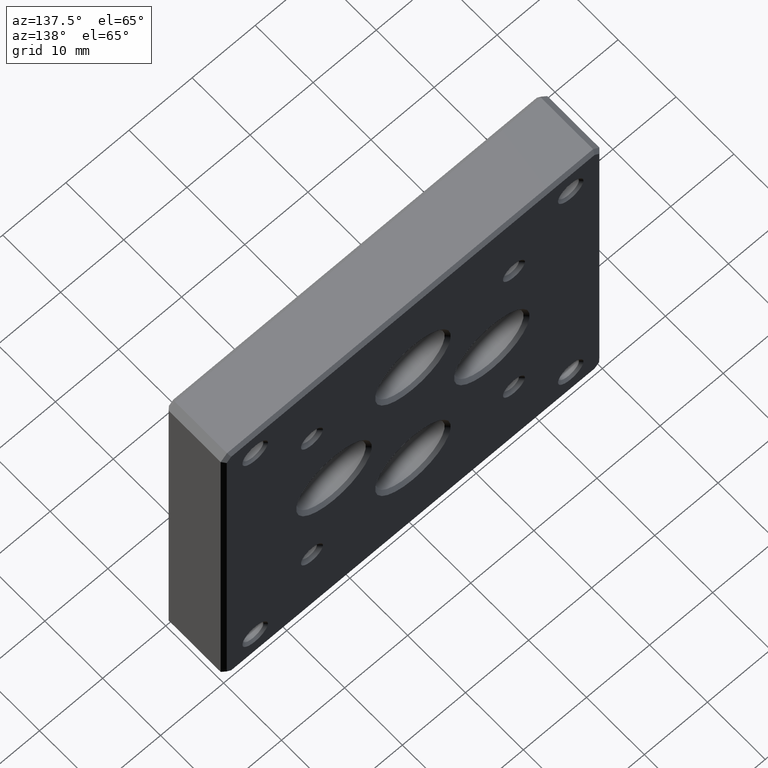
[diagram: clean part render]
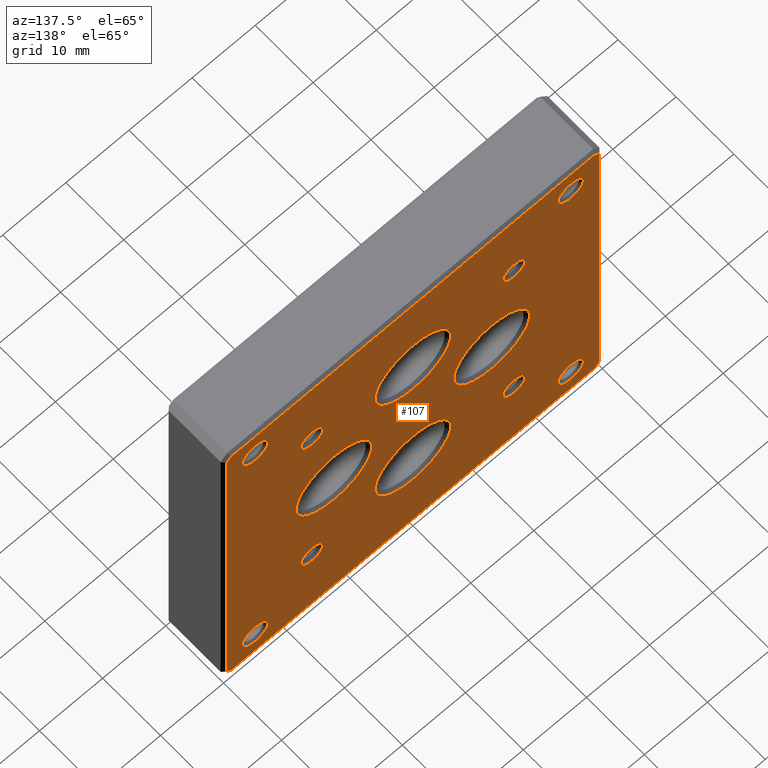
[diagram: same view with one face highlighted and labeled with its STEP entity id]
A machine part, auxiliary view. The second image highlights one B-rep face of the part: STEP entity #107.
In plain terms, the highlighted planar face has unit normal (0, 1, 0).
Its self-contained STEP definition (entity closure, byte-faithful):
#13 = CARTESIAN_POINT ( 'NONE',  ( 12.50000000000000533, 10.00000000000000000, 6.000000000000001776 ) ) ;
#15 = ORIENTED_EDGE ( 'NONE', *, *, #1526, .F. ) ;
#17 = ORIENTED_EDGE ( 'NONE', *, *, #604, .F. ) ;
#50 = FACE_BOUND ( 'NONE', #1059, .T. ) ;
#52 = DIRECTION ( 'NONE',  ( 0.000000000000000000, 0.000000000000000000, 1.000000000000000000 ) ) ;
#69 = FACE_BOUND ( 'NONE', #256, .T. ) ;
#107 = ADVANCED_FACE ( 'NONE', ( #172, #555, #656, #1136, #1269, #50, #1496, #1155, #896, #1382, #69, #1026, #403 ), #293, .T. ) ;
#120 = DIRECTION ( 'NONE',  ( 0.000000000000000000, 0.000000000000000000, 1.000000000000000000 ) ) ;
#121 = EDGE_LOOP ( 'NONE', ( #620 ) ) ;
#122 = CARTESIAN_POINT ( 'NONE',  ( 29.50000000000000355, 10.00000000000000000, -28.79289321881342900 ) ) ;
#125 = EDGE_LOOP ( 'NONE', ( #490 ) ) ;
#126 = VERTEX_POINT ( 'NONE', #1143 ) ;
#130 = VERTEX_POINT ( 'NONE', #613 ) ;
#142 = DIRECTION ( 'NONE',  ( -1.000000000000000000, 0.000000000000000000, 0.000000000000000000 ) ) ;
#143 = AXIS2_PLACEMENT_3D ( 'NONE', #515, #657, #52 ) ;
#146 = DIRECTION ( 'NONE',  ( 0.000000000000000000, 0.000000000000000000, 1.000000000000000000 ) ) ;
#155 = CARTESIAN_POINT ( 'NONE',  ( 28.29289321881344321, 10.00000000000000000, 29.50000000000000711 ) ) ;
#161 = CARTESIAN_POINT ( 'NONE',  ( -28.79289321881344321, 10.00000000000000000, 29.50000000000000711 ) ) ;
#168 = CIRCLE ( 'NONE', #143, 2.024999999999999023 ) ;
#172 = FACE_BOUND ( 'NONE', #1391, .T. ) ;
#176 = AXIS2_PLACEMENT_3D ( 'NONE', #1435, #1169, #569 ) ;
#178 = DIRECTION ( 'NONE',  ( 0.000000000000000000, 1.000000000000000000, 0.000000000000000000 ) ) ;
#184 = AXIS2_PLACEMENT_3D ( 'NONE', #1025, #903, #547 ) ;
#201 = EDGE_CURVE ( 'NONE', #1055, #1055, #1091, .T. ) ;
#208 = CARTESIAN_POINT ( 'NONE',  ( 29.50000000000000355, 10.00000000000000000, -28.29289321881343611 ) ) ;
#209 = AXIS2_PLACEMENT_3D ( 'NONE', #299, #684, #324 ) ;
#216 = EDGE_CURVE ( 'NONE', #562, #562, #658, .T. ) ;
#227 = AXIS2_PLACEMENT_3D ( 'NONE', #882, #178, #663 ) ;
#242 = CIRCLE ( 'NONE', #448, 6.000000000000000000 ) ;
#256 = EDGE_LOOP ( 'NONE', ( #1106 ) ) ;
#259 = VECTOR ( 'NONE', #637, 1000.000000000000000 ) ;
#261 = DIRECTION ( 'NONE',  ( 0.000000000000000000, 0.000000000000000000, 1.000000000000000000 ) ) ;
#263 = DIRECTION ( 'NONE',  ( 0.000000000000000000, 0.000000000000000000, 1.000000000000000000 ) ) ;
#272 = ORIENTED_EDGE ( 'NONE', *, *, #653, .T. ) ;
#276 = DIRECTION ( 'NONE',  ( 1.156482317317871478E-16, 0.000000000000000000, 1.000000000000000000 ) ) ;
#283 = LINE ( 'NONE', #1256, #298 ) ;
#292 = CARTESIAN_POINT ( 'NONE',  ( 24.99999999999999645, 10.00000000000000000, -24.99999999999998934 ) ) ;
#293 = PLANE ( 'NONE',  #227 ) ;
#298 = VECTOR ( 'NONE', #276, 1000.000000000000000 ) ;
#299 = CARTESIAN_POINT ( 'NONE',  ( 12.50000000000000533, 10.00000000000000000, 1.734723475976807094E-15 ) ) ;
#303 = CIRCLE ( 'NONE', #864, 2.024999999999999023 ) ;
#324 = DIRECTION ( 'NONE',  ( 0.000000000000000000, 0.000000000000000000, 1.000000000000000000 ) ) ;
#338 = VERTEX_POINT ( 'NONE', #122 ) ;
#341 = EDGE_CURVE ( 'NONE', #1546, #474, #1356, .T. ) ;
#386 = CIRCLE ( 'NONE', #1265, 6.000000000000000000 ) ;
#391 = ORIENTED_EDGE ( 'NONE', *, *, #1387, .F. ) ;
#396 = VECTOR ( 'NONE', #142, 1000.000000000000000 ) ;
#403 = FACE_OUTER_BOUND ( 'NONE', #1348, .T. ) ;
#409 = DIRECTION ( 'NONE',  ( -0.000000000000000000, 1.000000000000000000, -0.000000000000000000 ) ) ;
#411 = DIRECTION ( 'NONE',  ( -0.000000000000000000, 1.000000000000000000, -0.000000000000000000 ) ) ;
#434 = CARTESIAN_POINT ( 'NONE',  ( 16.00000000000000355, 10.00000000000000000, 17.75000000000000000 ) ) ;
#441 = LINE ( 'NONE', #1537, #1558 ) ;
#442 = EDGE_CURVE ( 'NONE', #1530, #1530, #781, .T. ) ;
#443 = CARTESIAN_POINT ( 'NONE',  ( -29.50000000000000355, 10.00000000000000000, 28.79289321881345032 ) ) ;
#447 = CARTESIAN_POINT ( 'NONE',  ( -25.00000000000000355, 10.00000000000000000, -24.99999999999999289 ) ) ;
#448 = AXIS2_PLACEMENT_3D ( 'NONE', #1238, #411, #263 ) ;
#474 = VERTEX_POINT ( 'NONE', #161 ) ;
#488 = EDGE_CURVE ( 'NONE', #1510, #1510, #386, .T. ) ;
#490 = ORIENTED_EDGE ( 'NONE', *, *, #201, .F. ) ;
#494 = EDGE_CURVE ( 'NONE', #126, #1546, #283, .T. ) ;
#515 = CARTESIAN_POINT ( 'NONE',  ( 25.00000000000000355, 10.00000000000000000, 25.00000000000000711 ) ) ;
#531 = EDGE_LOOP ( 'NONE', ( #602 ) ) ;
#543 = LINE ( 'NONE', #1230, #595 ) ;
#547 = DIRECTION ( 'NONE',  ( 0.000000000000000000, 0.000000000000000000, 1.000000000000000000 ) ) ;
#555 = FACE_BOUND ( 'NONE', #531, .T. ) ;
#562 = VERTEX_POINT ( 'NONE', #915 ) ;
#569 = DIRECTION ( 'NONE',  ( 0.000000000000000000, 0.000000000000000000, 1.000000000000000000 ) ) ;
#571 = EDGE_LOOP ( 'NONE', ( #1132 ) ) ;
#575 = ORIENTED_EDGE ( 'NONE', *, *, #494, .T. ) ;
#583 = ORIENTED_EDGE ( 'NONE', *, *, #921, .T. ) ;
#595 = VECTOR ( 'NONE', #632, 1000.000000000000114 ) ;
#599 = EDGE_LOOP ( 'NONE', ( #1216 ) ) ;
#602 = ORIENTED_EDGE ( 'NONE', *, *, #1489, .F. ) ;
#604 = EDGE_CURVE ( 'NONE', #1148, #1148, #822, .T. ) ;
#609 = VECTOR ( 'NONE', #1092, 1000.000000000000114 ) ;
#613 = CARTESIAN_POINT ( 'NONE',  ( 24.99999999999999645, 10.00000000000000000, -22.97499999999999076 ) ) ;
#620 = ORIENTED_EDGE ( 'NONE', *, *, #942, .F. ) ;
#624 = ORIENTED_EDGE ( 'NONE', *, *, #1501, .T. ) ;
#626 = ORIENTED_EDGE ( 'NONE', *, *, #807, .T. ) ;
#632 = DIRECTION ( 'NONE',  ( -0.7071067811865474617, 0.000000000000000000, 0.7071067811865474617 ) ) ;
#637 = DIRECTION ( 'NONE',  ( 1.000000000000000000, 0.000000000000000000, 0.000000000000000000 ) ) ;
#647 = CARTESIAN_POINT ( 'NONE',  ( 29.14644660940662035, 10.00000000000000000, 29.14644660940682286 ) ) ;
#653 = EDGE_CURVE ( 'NONE', #338, #1342, #441, .T. ) ;
#655 = CARTESIAN_POINT ( 'NONE',  ( -16.00000000000000355, 10.00000000000000000, -16.00000000000000355 ) ) ;
#656 = FACE_BOUND ( 'NONE', #121, .T. ) ;
#657 = DIRECTION ( 'NONE',  ( -0.000000000000000000, 1.000000000000000000, -0.000000000000000000 ) ) ;
#658 = CIRCLE ( 'NONE', #176, 5.999999999999998224 ) ;
#660 = DIRECTION ( 'NONE',  ( -0.000000000000000000, 1.000000000000000000, -0.000000000000000000 ) ) ;
#663 = DIRECTION ( 'NONE',  ( 0.000000000000000000, -0.000000000000000000, 1.000000000000000000 ) ) ;
#668 = CIRCLE ( 'NONE', #209, 6.000000000000000000 ) ;
#673 = ORIENTED_EDGE ( 'NONE', *, *, #854, .F. ) ;
#684 = DIRECTION ( 'NONE',  ( -0.000000000000000000, 1.000000000000000000, -0.000000000000000000 ) ) ;
#700 = VERTEX_POINT ( 'NONE', #974 ) ;
#718 = VERTEX_POINT ( 'NONE', #1319 ) ;
#726 = VECTOR ( 'NONE', #1479, 1000.000000000000114 ) ;
#730 = LINE ( 'NONE', #1555, #396 ) ;
#772 = VERTEX_POINT ( 'NONE', #1452 ) ;
#775 = DIRECTION ( 'NONE',  ( -0.000000000000000000, 1.000000000000000000, -0.000000000000000000 ) ) ;
#781 = CIRCLE ( 'NONE', #990, 1.749999999999998002 ) ;
#792 = DIRECTION ( 'NONE',  ( -0.000000000000000000, 1.000000000000000000, -0.000000000000000000 ) ) ;
#796 = CARTESIAN_POINT ( 'NONE',  ( 16.00000000000000355, 10.00000000000000000, 15.99999999999999645 ) ) ;
#807 = EDGE_CURVE ( 'NONE', #1342, #1073, #730, .T. ) ;
#812 = CARTESIAN_POINT ( 'NONE',  ( -12.49999999999999467, 10.00000000000000000, 6.000000000000003553 ) ) ;
#818 = ORIENTED_EDGE ( 'NONE', *, *, #925, .T. ) ;
#821 = CARTESIAN_POINT ( 'NONE',  ( -24.99999999999999645, 10.00000000000000000, 27.02500000000000568 ) ) ;
#822 = CIRCLE ( 'NONE', #1031, 2.024999999999999023 ) ;
#834 = VERTEX_POINT ( 'NONE', #821 ) ;
#841 = CARTESIAN_POINT ( 'NONE',  ( -16.00000000000000355, 10.00000000000000000, -14.25000000000000355 ) ) ;
#849 = VERTEX_POINT ( 'NONE', #1186 ) ;
#853 = EDGE_LOOP ( 'NONE', ( #15 ) ) ;
#854 = EDGE_CURVE ( 'NONE', #849, #849, #1128, .T. ) ;
#855 = AXIS2_PLACEMENT_3D ( 'NONE', #796, #1312, #1532 ) ;
#864 = AXIS2_PLACEMENT_3D ( 'NONE', #292, #775, #146 ) ;
#867 = AXIS2_PLACEMENT_3D ( 'NONE', #1325, #977, #120 ) ;
#875 = CARTESIAN_POINT ( 'NONE',  ( -16.00000000000000355, 10.00000000000000000, 15.99999999999999645 ) ) ;
#882 = CARTESIAN_POINT ( 'NONE',  ( 0.000000000000000000, 10.00000000000000000, 0.000000000000000000 ) ) ;
#896 = FACE_BOUND ( 'NONE', #599, .T. ) ;
#900 = DIRECTION ( 'NONE',  ( 0.000000000000000000, 0.000000000000000000, 1.000000000000000000 ) ) ;
#903 = DIRECTION ( 'NONE',  ( -0.000000000000000000, 1.000000000000000000, -0.000000000000000000 ) ) ;
#915 = CARTESIAN_POINT ( 'NONE',  ( 6.938893903907228378E-15, 10.00000000000000000, 18.50000000000000355 ) ) ;
#921 = EDGE_CURVE ( 'NONE', #1073, #126, #543, .T. ) ;
#925 = EDGE_CURVE ( 'NONE', #772, #1151, #1144, .T. ) ;
#935 = CARTESIAN_POINT ( 'NONE',  ( -16.00000000000000355, 10.00000000000000000, 17.74999999999999645 ) ) ;
#942 = EDGE_CURVE ( 'NONE', #700, #700, #168, .T. ) ;
#954 = CARTESIAN_POINT ( 'NONE',  ( -29.14644660940672694, 10.00000000000000000, 29.14644660940672694 ) ) ;
#971 = CIRCLE ( 'NONE', #1188, 1.749999999999999778 ) ;
#974 = CARTESIAN_POINT ( 'NONE',  ( 25.00000000000000355, 10.00000000000000000, 27.02500000000000568 ) ) ;
#977 = DIRECTION ( 'NONE',  ( -0.000000000000000000, 1.000000000000000000, -0.000000000000000000 ) ) ;
#983 = EDGE_LOOP ( 'NONE', ( #1058 ) ) ;
#990 = AXIS2_PLACEMENT_3D ( 'NONE', #875, #660, #900 ) ;
#993 = EDGE_CURVE ( 'NONE', #718, #718, #242, .T. ) ;
#1025 = CARTESIAN_POINT ( 'NONE',  ( -24.99999999999999645, 10.00000000000000000, 25.00000000000000711 ) ) ;
#1026 = FACE_BOUND ( 'NONE', #983, .T. ) ;
#1030 = DIRECTION ( 'NONE',  ( -0.000000000000000000, 1.000000000000000000, -0.000000000000000000 ) ) ;
#1031 = AXIS2_PLACEMENT_3D ( 'NONE', #447, #792, #1316 ) ;
#1035 = CARTESIAN_POINT ( 'NONE',  ( -25.00000000000000355, 10.00000000000000000, -22.97499999999999432 ) ) ;
#1055 = VERTEX_POINT ( 'NONE', #434 ) ;
#1057 = LINE ( 'NONE', #208, #1282 ) ;
#1058 = ORIENTED_EDGE ( 'NONE', *, *, #216, .F. ) ;
#1059 = EDGE_LOOP ( 'NONE', ( #673 ) ) ;
#1073 = VERTEX_POINT ( 'NONE', #1512 ) ;
#1091 = CIRCLE ( 'NONE', #855, 1.750000000000001554 ) ;
#1092 = DIRECTION ( 'NONE',  ( 0.7071067811865474617, 0.000000000000000000, 0.7071067811865474617 ) ) ;
#1100 = EDGE_CURVE ( 'NONE', #1151, #338, #1057, .T. ) ;
#1101 = VERTEX_POINT ( 'NONE', #841 ) ;
#1106 = ORIENTED_EDGE ( 'NONE', *, *, #1556, .F. ) ;
#1128 = CIRCLE ( 'NONE', #867, 1.750000000000001554 ) ;
#1132 = ORIENTED_EDGE ( 'NONE', *, *, #488, .F. ) ;
#1133 = DIRECTION ( 'NONE',  ( 0.000000000000000000, 0.000000000000000000, 1.000000000000000000 ) ) ;
#1136 = FACE_BOUND ( 'NONE', #853, .T. ) ;
#1140 = EDGE_LOOP ( 'NONE', ( #1207 ) ) ;
#1143 = CARTESIAN_POINT ( 'NONE',  ( -29.50000000000000711, 10.00000000000000000, -28.79289321881345742 ) ) ;
#1144 = LINE ( 'NONE', #647, #726 ) ;
#1146 = CIRCLE ( 'NONE', #184, 2.024999999999999023 ) ;
#1148 = VERTEX_POINT ( 'NONE', #1035 ) ;
#1151 = VERTEX_POINT ( 'NONE', #1419 ) ;
#1155 = FACE_BOUND ( 'NONE', #1140, .T. ) ;
#1169 = DIRECTION ( 'NONE',  ( -0.000000000000000000, 1.000000000000000000, -0.000000000000000000 ) ) ;
#1186 = CARTESIAN_POINT ( 'NONE',  ( 15.99999999999999645, 10.00000000000000000, -14.24999999999999822 ) ) ;
#1188 = AXIS2_PLACEMENT_3D ( 'NONE', #655, #409, #261 ) ;
#1207 = ORIENTED_EDGE ( 'NONE', *, *, #442, .F. ) ;
#1216 = ORIENTED_EDGE ( 'NONE', *, *, #993, .F. ) ;
#1230 = CARTESIAN_POINT ( 'NONE',  ( -29.14644660940673404, 10.00000000000000000, -29.14644660940673404 ) ) ;
#1236 = LINE ( 'NONE', #155, #259 ) ;
#1238 = CARTESIAN_POINT ( 'NONE',  ( 3.469446951953614189E-15, 10.00000000000000000, -12.49999999999999645 ) ) ;
#1246 = ORIENTED_EDGE ( 'NONE', *, *, #341, .T. ) ;
#1256 = CARTESIAN_POINT ( 'NONE',  ( -29.50000000000000355, 10.00000000000000000, 28.29289321881345742 ) ) ;
#1265 = AXIS2_PLACEMENT_3D ( 'NONE', #1364, #1030, #1133 ) ;
#1269 = FACE_BOUND ( 'NONE', #1333, .T. ) ;
#1282 = VECTOR ( 'NONE', #1395, 1000.000000000000000 ) ;
#1293 = ORIENTED_EDGE ( 'NONE', *, *, #1100, .T. ) ;
#1312 = DIRECTION ( 'NONE',  ( -0.000000000000000000, 1.000000000000000000, -0.000000000000000000 ) ) ;
#1316 = DIRECTION ( 'NONE',  ( 0.000000000000000000, 0.000000000000000000, 1.000000000000000000 ) ) ;
#1319 = CARTESIAN_POINT ( 'NONE',  ( 3.469446951953614189E-15, 10.00000000000000000, -6.499999999999997335 ) ) ;
#1325 = CARTESIAN_POINT ( 'NONE',  ( 15.99999999999999645, 10.00000000000000000, -16.00000000000000000 ) ) ;
#1331 = CARTESIAN_POINT ( 'NONE',  ( 28.79289321881344321, 10.00000000000000000, -29.49999999999998934 ) ) ;
#1333 = EDGE_LOOP ( 'NONE', ( #391 ) ) ;
#1342 = VERTEX_POINT ( 'NONE', #1331 ) ;
#1348 = EDGE_LOOP ( 'NONE', ( #818, #1293, #272, #626, #583, #575, #1246, #624 ) ) ;
#1356 = LINE ( 'NONE', #954, #609 ) ;
#1364 = CARTESIAN_POINT ( 'NONE',  ( -12.49999999999999467, 10.00000000000000000, 3.469446951953614189E-15 ) ) ;
#1382 = FACE_BOUND ( 'NONE', #571, .T. ) ;
#1387 = EDGE_CURVE ( 'NONE', #1101, #1101, #971, .T. ) ;
#1391 = EDGE_LOOP ( 'NONE', ( #17 ) ) ;
#1395 = DIRECTION ( 'NONE',  ( -1.156482317317871478E-16, 0.000000000000000000, -1.000000000000000000 ) ) ;
#1419 = CARTESIAN_POINT ( 'NONE',  ( 29.50000000000000711, 10.00000000000000000, 28.79289321881343966 ) ) ;
#1423 = DIRECTION ( 'NONE',  ( -0.7071067811865474617, 0.000000000000000000, -0.7071067811865474617 ) ) ;
#1435 = CARTESIAN_POINT ( 'NONE',  ( 6.938893903907228378E-15, 10.00000000000000000, 12.50000000000000355 ) ) ;
#1449 = VERTEX_POINT ( 'NONE', #13 ) ;
#1452 = CARTESIAN_POINT ( 'NONE',  ( 28.79289321881343255, 10.00000000000000000, 29.50000000000000711 ) ) ;
#1479 = DIRECTION ( 'NONE',  ( 0.7071067811865500152, 0.000000000000000000, -0.7071067811865451302 ) ) ;
#1489 = EDGE_CURVE ( 'NONE', #130, #130, #303, .T. ) ;
#1496 = FACE_BOUND ( 'NONE', #125, .T. ) ;
#1501 = EDGE_CURVE ( 'NONE', #474, #772, #1236, .T. ) ;
#1510 = VERTEX_POINT ( 'NONE', #812 ) ;
#1512 = CARTESIAN_POINT ( 'NONE',  ( -28.79289321881347874, 10.00000000000000000, -29.49999999999998934 ) ) ;
#1526 = EDGE_CURVE ( 'NONE', #834, #834, #1146, .T. ) ;
#1530 = VERTEX_POINT ( 'NONE', #935 ) ;
#1532 = DIRECTION ( 'NONE',  ( 0.000000000000000000, 0.000000000000000000, 1.000000000000000000 ) ) ;
#1537 = CARTESIAN_POINT ( 'NONE',  ( 29.14644660940671628, 10.00000000000000000, -29.14644660940671628 ) ) ;
#1546 = VERTEX_POINT ( 'NONE', #443 ) ;
#1555 = CARTESIAN_POINT ( 'NONE',  ( -28.29289321881347163, 10.00000000000000000, -29.49999999999998934 ) ) ;
#1556 = EDGE_CURVE ( 'NONE', #1449, #1449, #668, .T. ) ;
#1558 = VECTOR ( 'NONE', #1423, 1000.000000000000114 ) ;